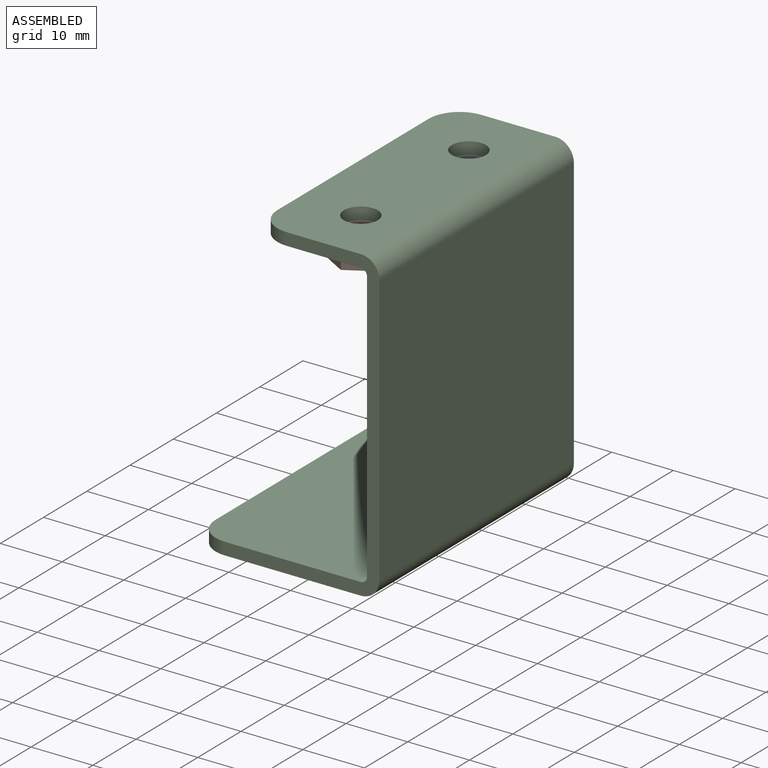
[diagram: assembled view]
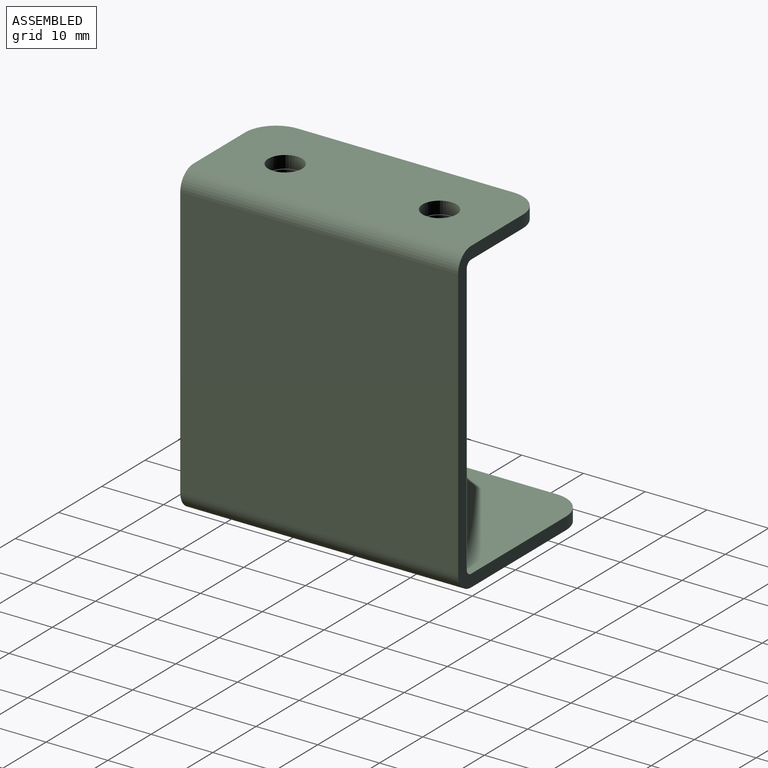
[diagram: assembled view, second angle]
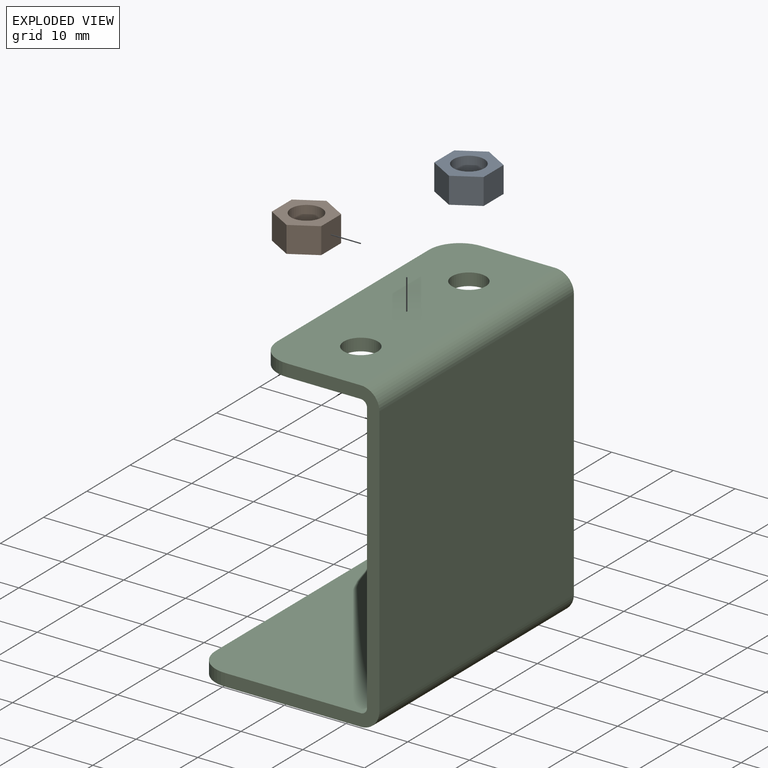
[diagram: exploded view]
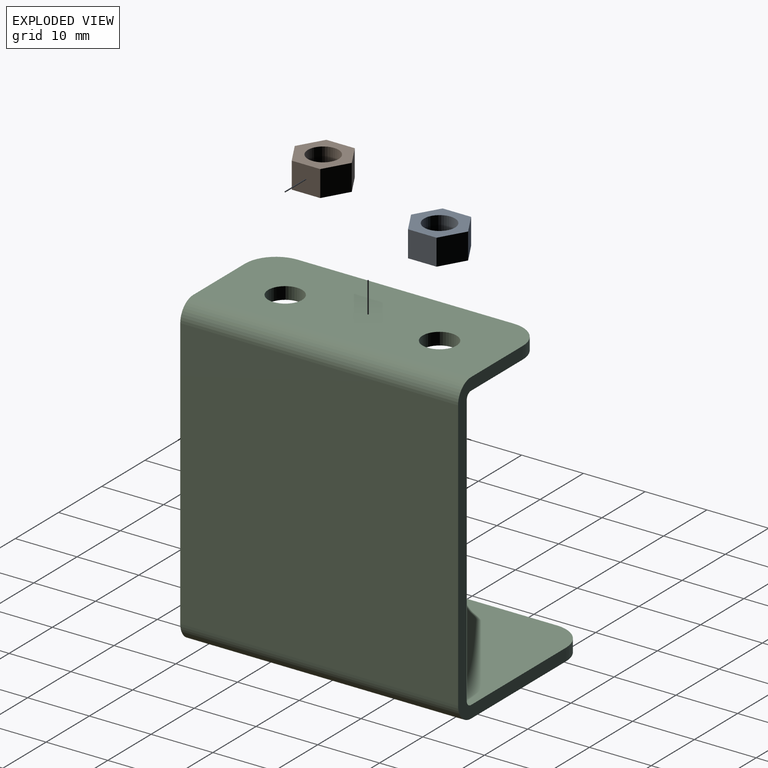
[diagram: exploded view, second angle]
ASSEMBLY  parts=3 mates=2
PART A: 9 faces, bbox 8x4.2x9.2 mm
  f0: plane 4.24x4mm, normal (0.5,0,0.87), area 19.6mm2, adj f1,f6,f7,f8
  f1: plane 4.24x4mm, normal (-0.5,0,0.87), area 19.6mm2, adj f0,f2,f7,f8
  f2: plane 4.62x4.24mm, normal (-1,0,0), area 19.6mm2, adj f1,f3,f7,f8
  f3: plane 4.24x4mm, normal (-0.5,0,-0.87), area 19.6mm2, adj f2,f4,f7,f8
  f4: plane 4.24x4mm, normal (0.5,0,-0.87), area 19.6mm2, adj f3,f6,f7,f8
  f5: cylinder r=2.5mm len=5mm, axis (0,1,0), area 66.6mm2, adj f7,f8
  f6: plane 4.62x4.24mm, normal (1,0,0), area 19.6mm2, adj f0,f4,f7,f8
  f7: plane 9.24x8mm, normal (0,-1,0), area 35.8mm2, adj f0,f1,f2,f3,f4,f5,f6
  f8: plane 9.24x8mm, normal (0,1,0), area 35.8mm2, adj f0,f1,f2,f3,f4,f5,f6
PART B: same geometry as A
PART C: 20 faces, bbox 30x45x50 mm
  f0: plane 35x2mm, normal (-1,0,0), area 70mm2, adj f1,f11,f15,f17
  f1: plane 45x17mm, normal (0,0,-1), area 706.8mm2, adj f0,f2,f12,f13,f15,f17,f18,f19
  f2: cylinder r=1mm len=45mm, axis (0,1,0), area 70.7mm2, adj f1,f3,f12,f13
  f3: plane 45x44mm, normal (-1,0,0), area 1980mm2, adj f2,f4,f12,f13
  f4: cylinder r=1mm len=45mm, axis (0,1,0), area 70.7mm2, adj f3,f5,f12,f13
  f5: plane 45x27mm, normal (0,0,1), area 1204.3mm2, adj f4,f6,f12,f13,f14,f16
  f6: plane 35x2mm, normal (-1,0,0), area 70mm2, adj f5,f7,f14,f16
  f7: plane 45x27mm, normal (0,0,-1), area 1204.3mm2, adj f6,f8,f12,f13,f14,f16
  f8: cylinder r=3mm len=45mm, axis (0,1,0), area 212.1mm2, adj f7,f9,f12,f13
  f9: plane 45x44mm, normal (1,0,0), area 1980mm2, adj f8,f10,f12,f13
  f10: cylinder r=3mm len=45mm, axis (0,1,0), area 212.1mm2, adj f9,f11,f12,f13
  f11: plane 45x17mm, normal (0,0,1), area 706.8mm2, adj f0,f10,f12,f13,f15,f17,f18,f19
  f12: plane 50x25mm, normal (0,-1,0), area 168.6mm2, adj f1,f2,f3,f4,f5,f7,f8,f9
  f13: plane 50x25mm, normal (0,1,0), area 168.6mm2, adj f1,f2,f3,f4,f5,f7,f8,f9
  f14: cylinder r=5mm len=5mm, axis (0,0,-1), area 15.7mm2, adj f5,f6,f7,f13
  f15: cylinder r=5mm len=5mm, axis (0,0,-1), area 15.7mm2, adj f0,f1,f11,f13
  f16: cylinder r=5mm len=5mm, axis (0,0,1), area 15.7mm2, adj f5,f6,f7,f12
  f17: cylinder r=5mm len=5mm, axis (0,0,1), area 15.7mm2, adj f0,f1,f11,f12
  f18: cylinder r=2.75mm len=5.5mm, axis (0,0,1), area 34.6mm2, adj f1,f11
  f19: cylinder r=2.75mm len=5.5mm, axis (0,0,1), area 34.6mm2, adj f1,f11
PLACE A rot(axis=(-1,0,0),90deg) t=(-13.42,3.33,23.08)mm
PLACE B rot(axis=(-1,0,0),90deg) t=(-13.42,-21.67,23.08)mm
PLACE C t=(-18.42,-9.17,2.2)mm
MATE fastened B.f5 <-> C.f19  axis (0,0,-1) through (-13.42,-21.67,25.2)mm
MATE fastened A.f5 <-> C.f18  axis (0,0,1) through (-13.42,3.33,25.2)mm
